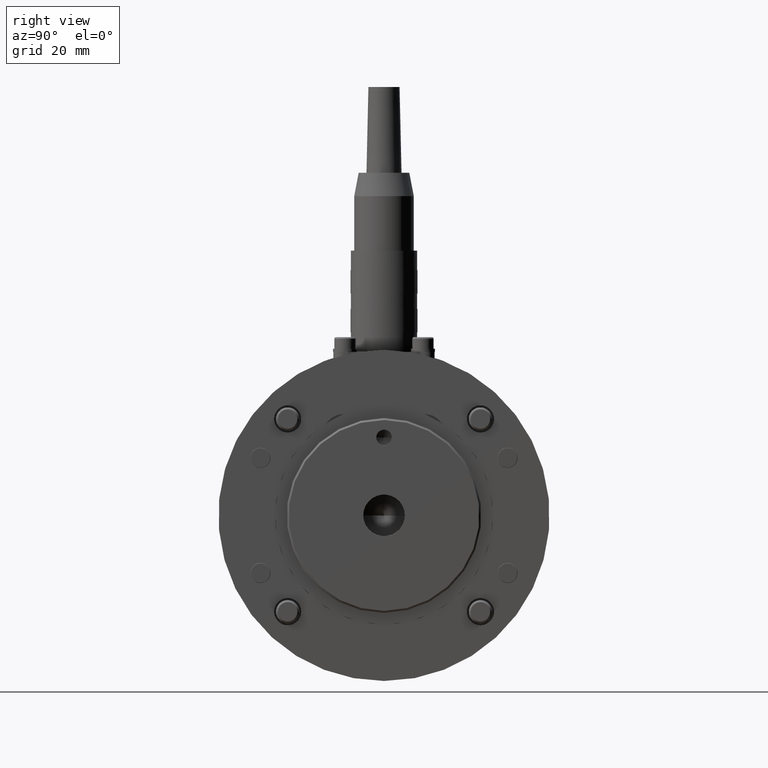
[diagram: clean part render]
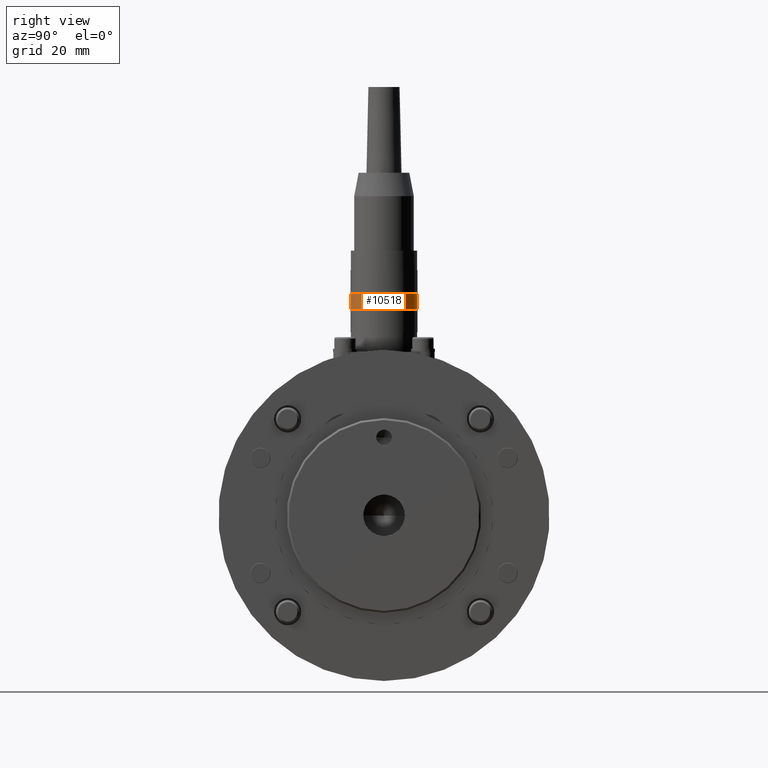
[diagram: same view with one face highlighted and labeled with its STEP entity id]
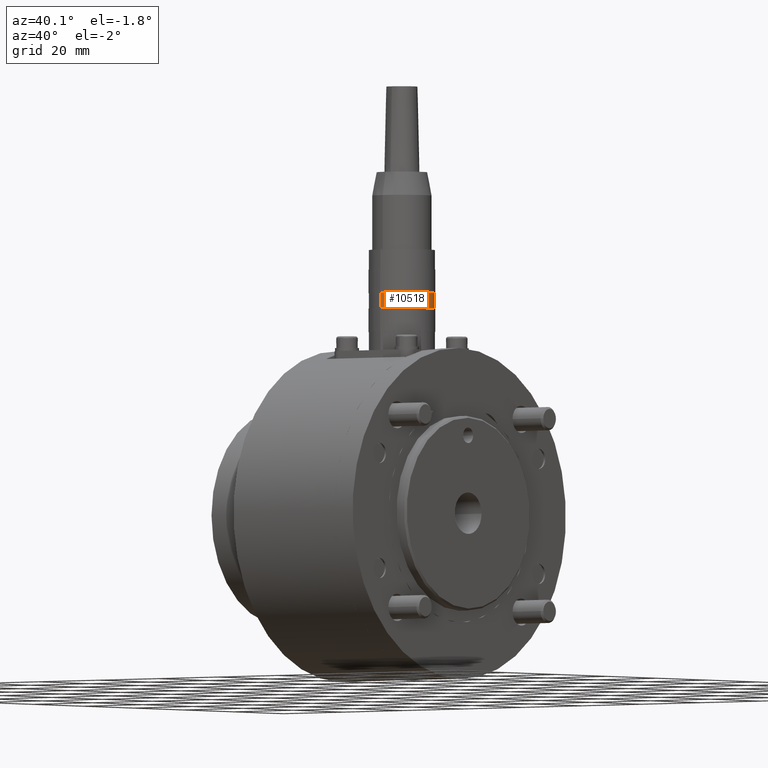
[diagram: same view with one face highlighted and labeled with its STEP entity id]
A machine part, right view. The second image highlights one B-rep face of the part: STEP entity #10518.
A second angle (auxiliary view) of the same face is appended — the face is thin or edge-on in the first view.
In plain terms, the highlighted cylindrical surface (edge-blend (fillet) strip) has radius 8.5 mm, axis along (-0, -0, -1).
Its self-contained STEP definition (entity closure, byte-faithful):
#10088=CARTESIAN_POINT('',(106.999999999999970,58.499999999999993,0.0));
#10089=VERTEX_POINT('',#10088);
#10090=CARTESIAN_POINT('',(102.999999999999970,58.499999999999993,0.0));
#10091=VERTEX_POINT('',#10090);
#10092=CARTESIAN_POINT('',(106.999999999999970,58.499999999999993,0.0));
#10093=DIRECTION('',(-1.0,0.0,0.0));
#10094=VECTOR('',#10093,4.0);
#10095=LINE('',#10092,#10094);
#10096=EDGE_CURVE('',#10089,#10091,#10095,.T.);
#10098=CARTESIAN_POINT('',(106.999999999999970,41.499999999999993,-1.040915E-015));
#10099=VERTEX_POINT('',#10098);
#10107=CARTESIAN_POINT('',(102.999999999999970,41.499999999999993,-1.040915E-015));
#10108=VERTEX_POINT('',#10107);
#10109=CARTESIAN_POINT('',(106.999999999999970,41.499999999999993,-1.040915E-015));
#10110=DIRECTION('',(-1.0,0.0,0.0));
#10111=VECTOR('',#10110,4.0);
#10112=LINE('',#10109,#10111);
#10113=EDGE_CURVE('',#10099,#10108,#10112,.T.);
#10490=CARTESIAN_POINT('',(102.999999999999970,49.999999999999993,0.0));
#10491=DIRECTION('',(1.0,0.0,0.0));
#10492=DIRECTION('',(0.0,1.0,0.0));
#10493=AXIS2_PLACEMENT_3D('',#10490,#10491,#10492);
#10494=CIRCLE('',#10493,8.500000000000000);
#10495=EDGE_CURVE('',#10091,#10108,#10494,.T.);
#10501=CARTESIAN_POINT('',(104.999999999999970,49.999999999999993,0.0));
#10502=DIRECTION('',(1.0,0.0,0.0));
#10503=DIRECTION('',(0.0,1.0,0.0));
#10504=AXIS2_PLACEMENT_3D('',#10501,#10502,#10503);
#10505=CYLINDRICAL_SURFACE('',#10504,8.500000000000000);
#10506=ORIENTED_EDGE('',*,*,#10096,.T.);
#10507=ORIENTED_EDGE('',*,*,#10495,.T.);
#10508=ORIENTED_EDGE('',*,*,#10113,.F.);
#10509=CARTESIAN_POINT('',(106.999999999999970,49.999999999999993,0.0));
#10510=DIRECTION('',(1.0,0.0,0.0));
#10511=DIRECTION('',(0.0,1.0,0.0));
#10512=AXIS2_PLACEMENT_3D('',#10509,#10510,#10511);
#10513=CIRCLE('',#10512,8.500000000000000);
#10514=EDGE_CURVE('',#10089,#10099,#10513,.T.);
#10515=ORIENTED_EDGE('',*,*,#10514,.F.);
#10516=EDGE_LOOP('',(#10506,#10507,#10508,#10515));
#10517=FACE_OUTER_BOUND('',#10516,.T.);
#10518=ADVANCED_FACE('',(#10517),#10505,.T.);